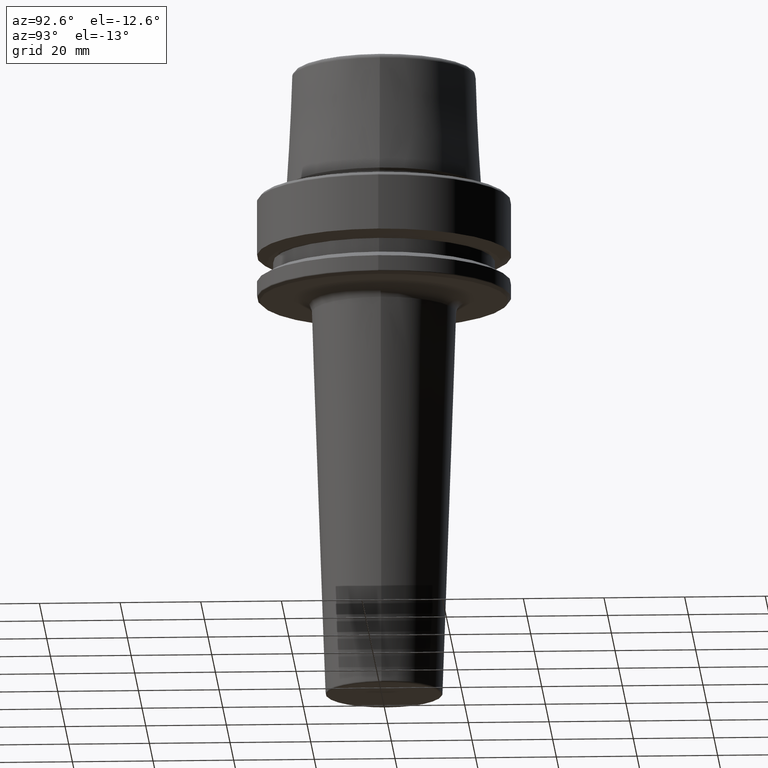
[diagram: clean part render]
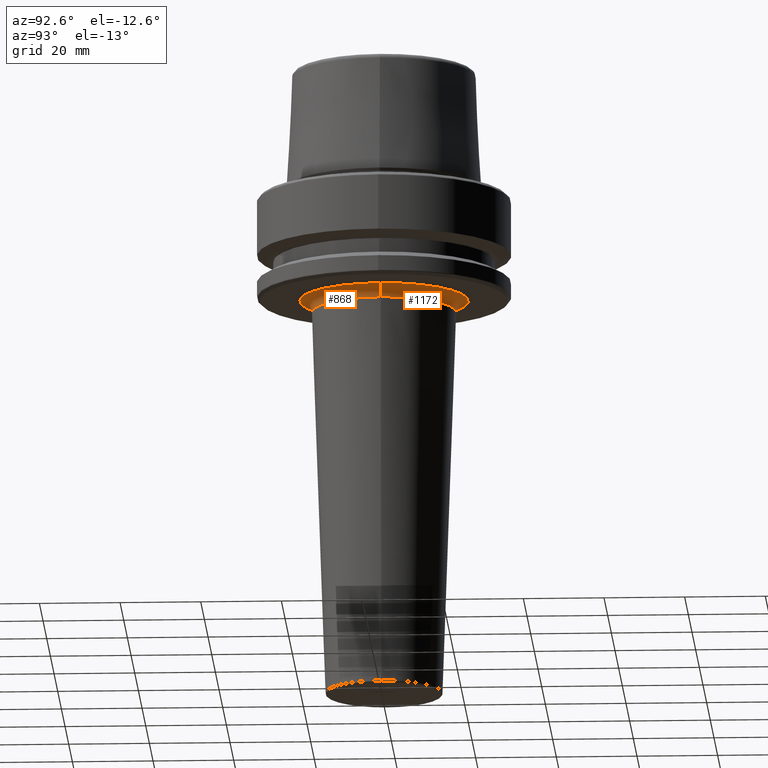
[diagram: same view with one multi-face feature highlighted, each face labeled with its STEP entity id]
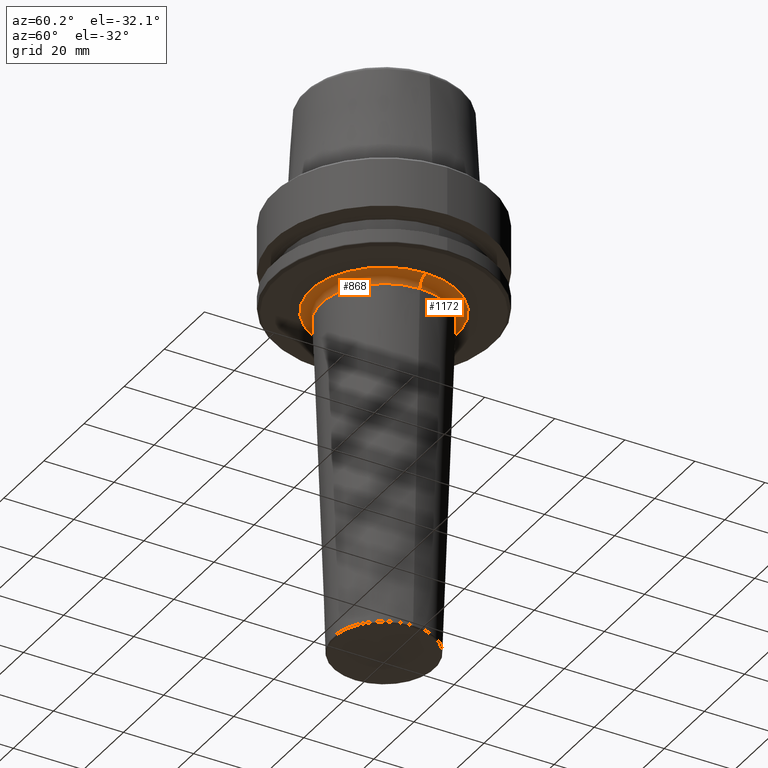
[diagram: same view with one multi-face feature highlighted, each face labeled with its STEP entity id]
A machine part, auxiliary view. The highlighted faces form ONE feature: a constant-radius fillet chain: 2 tangent blend faces with common blend radius 3 mm. The faces share edges in the B-rep.
A second angle (auxiliary view) of the same feature is appended — it is thin or edge-on in the first view.
Their STEP definitions:
[1] entity #1172 (Torus):
#61 = CARTESIAN_POINT ( 'NONE',  ( 0.0000000000000000000, 0.0000000000000000000, -28.89506425347315100 ) ) ;
#137 = AXIS2_PLACEMENT_3D ( 'NONE', #344, #1025, #454 ) ;
#148 = DIRECTION ( 'NONE',  ( -0.0000000000000000000, -0.0000000000000000000, 1.000000000000000000 ) ) ;
#257 = CARTESIAN_POINT ( 'NONE',  ( -20.89683693761003300, 2.559124446794830600E-015, -29.00000000000000700 ) ) ;
#310 = AXIS2_PLACEMENT_3D ( 'NONE', #415, #1089, #525 ) ;
#318 = EDGE_CURVE ( 'NONE', #963, #1204, #1100, .T. ) ;
#338 = DIRECTION ( 'NONE',  ( 1.000000000000000000, 0.0000000000000000000, 0.0000000000000000000 ) ) ;
#344 = CARTESIAN_POINT ( 'NONE',  ( 20.89683693761003300, 0.0000000000000000000, -29.00000000000000700 ) ) ;
#354 = DIRECTION ( 'NONE',  ( -1.000000000000000000, 1.224646799147353500E-016, 0.0000000000000000000 ) ) ;
#382 = ORIENTED_EDGE ( 'NONE', *, *, #795, .F. ) ;
#386 = CARTESIAN_POINT ( 'NONE',  ( 20.89683693761003300, 0.0000000000000000000, -26.00000000000001100 ) ) ;
#397 = VERTEX_POINT ( 'NONE', #461 ) ;
#415 = CARTESIAN_POINT ( 'NONE',  ( 0.0000000000000000000, 0.0000000000000000000, -26.00000000000001100 ) ) ;
#417 = EDGE_CURVE ( 'NONE', #940, #1204, #728, .T. ) ;
#427 = EDGE_LOOP ( 'NONE', ( #796, #382, #887, #684 ) ) ;
#454 = DIRECTION ( 'NONE',  ( 0.0000000000000000000, 0.0000000000000000000, -1.000000000000000000 ) ) ;
#461 = CARTESIAN_POINT ( 'NONE',  ( -20.89683693761003300, 2.559124446794830600E-015, -26.00000000000001100 ) ) ;
#525 = DIRECTION ( 'NONE',  ( 1.000000000000000000, 0.0000000000000000000, 0.0000000000000000000 ) ) ;
#546 = CIRCLE ( 'NONE', #936, 2.999999999999999100 ) ;
#578 = DIRECTION ( 'NONE',  ( -0.0000000000000000000, -0.0000000000000000000, -1.000000000000000000 ) ) ;
#586 = AXIS2_PLACEMENT_3D ( 'NONE', #921, #148, #338 ) ;
#674 = FACE_OUTER_BOUND ( 'NONE', #427, .T. ) ;
#684 = ORIENTED_EDGE ( 'NONE', *, *, #417, .F. ) ;
#728 = CIRCLE ( 'NONE', #815, 17.89867275112843700 ) ;
#774 = CARTESIAN_POINT ( 'NONE',  ( -17.89867275112843400, 2.191955229365538800E-015, -28.89506425347315100 ) ) ;
#795 = EDGE_CURVE ( 'NONE', #963, #397, #1040, .T. ) ;
#796 = ORIENTED_EDGE ( 'NONE', *, *, #1021, .F. ) ;
#815 = AXIS2_PLACEMENT_3D ( 'NONE', #61, #578, #1052 ) ;
#887 = ORIENTED_EDGE ( 'NONE', *, *, #318, .T. ) ;
#891 = TOROIDAL_SURFACE ( 'NONE', #586, 20.89683693761003300, 3.000000000000000000 ) ;
#921 = CARTESIAN_POINT ( 'NONE',  ( 0.0000000000000000000, 0.0000000000000000000, -29.00000000000000700 ) ) ;
#936 = AXIS2_PLACEMENT_3D ( 'NONE', #257, #939, #354 ) ;
#939 = DIRECTION ( 'NONE',  ( 1.224646799147353200E-016, 1.000000000000000000, 0.0000000000000000000 ) ) ;
#940 = VERTEX_POINT ( 'NONE', #774 ) ;
#963 = VERTEX_POINT ( 'NONE', #386 ) ;
#1003 = CARTESIAN_POINT ( 'NONE',  ( 17.89867275112843400, 0.0000000000000000000, -28.89506425347315100 ) ) ;
#1021 = EDGE_CURVE ( 'NONE', #397, #940, #546, .T. ) ;
#1025 = DIRECTION ( 'NONE',  ( 0.0000000000000000000, -1.000000000000000000, 0.0000000000000000000 ) ) ;
#1040 = CIRCLE ( 'NONE', #310, 20.89683693761003300 ) ;
#1052 = DIRECTION ( 'NONE',  ( 1.000000000000000000, 0.0000000000000000000, 0.0000000000000000000 ) ) ;
#1089 = DIRECTION ( 'NONE',  ( -0.0000000000000000000, -0.0000000000000000000, 1.000000000000000000 ) ) ;
#1100 = CIRCLE ( 'NONE', #137, 2.999999999999999100 ) ;
#1172 = ADVANCED_FACE ( 'NONE', ( #674 ), #891, .F. ) ;
#1204 = VERTEX_POINT ( 'NONE', #1003 ) ;
[2] entity #868 (Torus):
#30 = CARTESIAN_POINT ( 'NONE',  ( 0.0000000000000000000, 0.0000000000000000000, -29.00000000000000700 ) ) ;
#137 = AXIS2_PLACEMENT_3D ( 'NONE', #344, #1025, #454 ) ;
#144 = ORIENTED_EDGE ( 'NONE', *, *, #318, .F. ) ;
#166 = CIRCLE ( 'NONE', #794, 20.89683693761003300 ) ;
#170 = ORIENTED_EDGE ( 'NONE', *, *, #642, .F. ) ;
#209 = CARTESIAN_POINT ( 'NONE',  ( 0.0000000000000000000, 0.0000000000000000000, -26.00000000000001100 ) ) ;
#252 = DIRECTION ( 'NONE',  ( -0.0000000000000000000, -0.0000000000000000000, -1.000000000000000000 ) ) ;
#257 = CARTESIAN_POINT ( 'NONE',  ( -20.89683693761003300, 2.559124446794830600E-015, -29.00000000000000700 ) ) ;
#291 = AXIS2_PLACEMENT_3D ( 'NONE', #833, #252, #930 ) ;
#295 = ORIENTED_EDGE ( 'NONE', *, *, #320, .F. ) ;
#318 = EDGE_CURVE ( 'NONE', #963, #1204, #1100, .T. ) ;
#320 = EDGE_CURVE ( 'NONE', #1204, #940, #819, .T. ) ;
#344 = CARTESIAN_POINT ( 'NONE',  ( 20.89683693761003300, 0.0000000000000000000, -29.00000000000000700 ) ) ;
#354 = DIRECTION ( 'NONE',  ( -1.000000000000000000, 1.224646799147353500E-016, 0.0000000000000000000 ) ) ;
#386 = CARTESIAN_POINT ( 'NONE',  ( 20.89683693761003300, 0.0000000000000000000, -26.00000000000001100 ) ) ;
#397 = VERTEX_POINT ( 'NONE', #461 ) ;
#450 = EDGE_LOOP ( 'NONE', ( #170, #877, #295, #144 ) ) ;
#454 = DIRECTION ( 'NONE',  ( 0.0000000000000000000, 0.0000000000000000000, -1.000000000000000000 ) ) ;
#461 = CARTESIAN_POINT ( 'NONE',  ( -20.89683693761003300, 2.559124446794830600E-015, -26.00000000000001100 ) ) ;
#482 = TOROIDAL_SURFACE ( 'NONE', #775, 20.89683693761003300, 3.000000000000000000 ) ;
#486 = DIRECTION ( 'NONE',  ( 1.000000000000000000, 0.0000000000000000000, 0.0000000000000000000 ) ) ;
#515 = FACE_OUTER_BOUND ( 'NONE', #450, .T. ) ;
#546 = CIRCLE ( 'NONE', #936, 2.999999999999999100 ) ;
#609 = DIRECTION ( 'NONE',  ( 1.000000000000000000, 0.0000000000000000000, 0.0000000000000000000 ) ) ;
#642 = EDGE_CURVE ( 'NONE', #397, #963, #166, .T. ) ;
#714 = DIRECTION ( 'NONE',  ( -0.0000000000000000000, -0.0000000000000000000, 1.000000000000000000 ) ) ;
#774 = CARTESIAN_POINT ( 'NONE',  ( -17.89867275112843400, 2.191955229365538800E-015, -28.89506425347315100 ) ) ;
#775 = AXIS2_PLACEMENT_3D ( 'NONE', #30, #714, #609 ) ;
#794 = AXIS2_PLACEMENT_3D ( 'NONE', #209, #879, #486 ) ;
#819 = CIRCLE ( 'NONE', #291, 17.89867275112843700 ) ;
#833 = CARTESIAN_POINT ( 'NONE',  ( 0.0000000000000000000, 0.0000000000000000000, -28.89506425347315100 ) ) ;
#868 = ADVANCED_FACE ( 'NONE', ( #515 ), #482, .F. ) ;
#877 = ORIENTED_EDGE ( 'NONE', *, *, #1021, .T. ) ;
#879 = DIRECTION ( 'NONE',  ( -0.0000000000000000000, -0.0000000000000000000, 1.000000000000000000 ) ) ;
#930 = DIRECTION ( 'NONE',  ( 1.000000000000000000, 0.0000000000000000000, 0.0000000000000000000 ) ) ;
#936 = AXIS2_PLACEMENT_3D ( 'NONE', #257, #939, #354 ) ;
#939 = DIRECTION ( 'NONE',  ( 1.224646799147353200E-016, 1.000000000000000000, 0.0000000000000000000 ) ) ;
#940 = VERTEX_POINT ( 'NONE', #774 ) ;
#963 = VERTEX_POINT ( 'NONE', #386 ) ;
#1003 = CARTESIAN_POINT ( 'NONE',  ( 17.89867275112843400, 0.0000000000000000000, -28.89506425347315100 ) ) ;
#1021 = EDGE_CURVE ( 'NONE', #397, #940, #546, .T. ) ;
#1025 = DIRECTION ( 'NONE',  ( 0.0000000000000000000, -1.000000000000000000, 0.0000000000000000000 ) ) ;
#1100 = CIRCLE ( 'NONE', #137, 2.999999999999999100 ) ;
#1204 = VERTEX_POINT ( 'NONE', #1003 ) ;